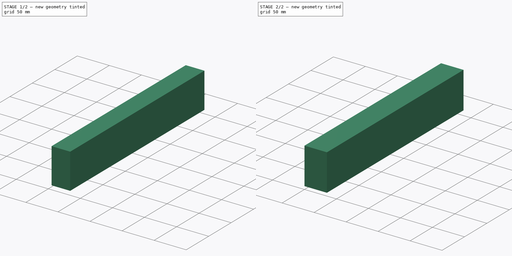
[diagram: build sequence overview — one tinted view per stage of 2, left to right]
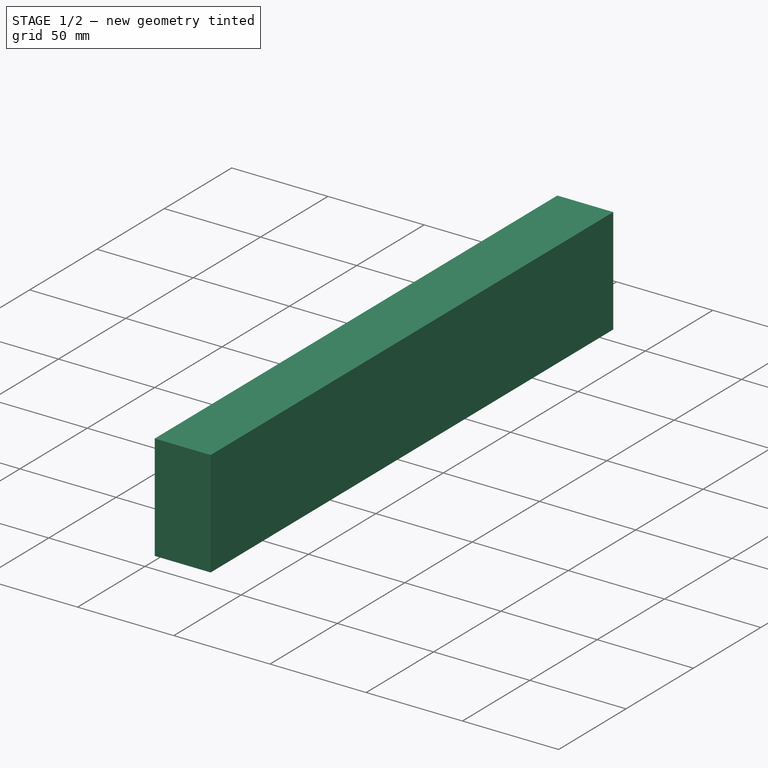
[diagram: stage 1 of 2 — iso view after this stage's code; geometry added in this stage tinted green]
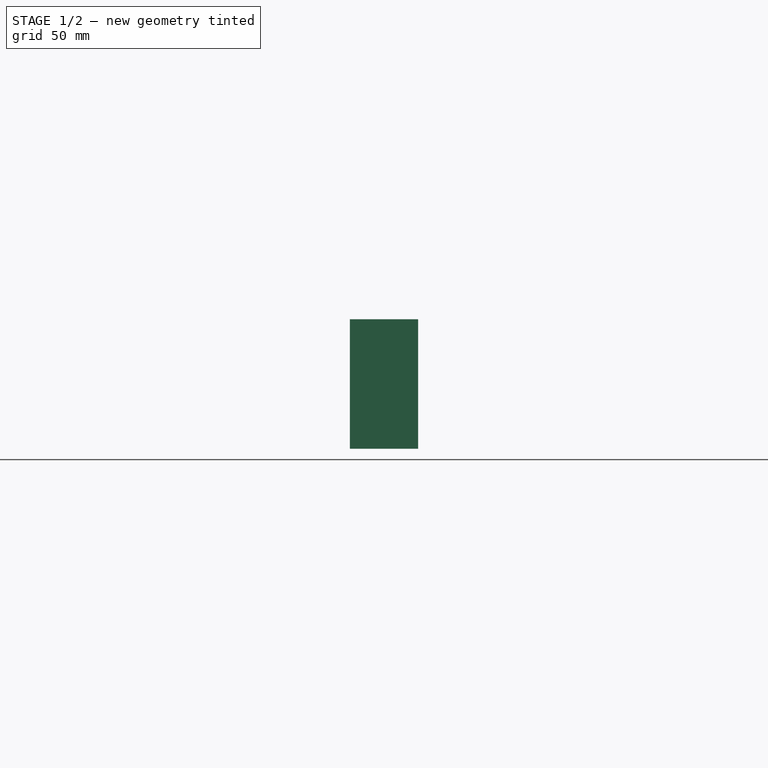
[diagram: stage 1 of 2 — front view after this stage's code; geometry added in this stage tinted green]
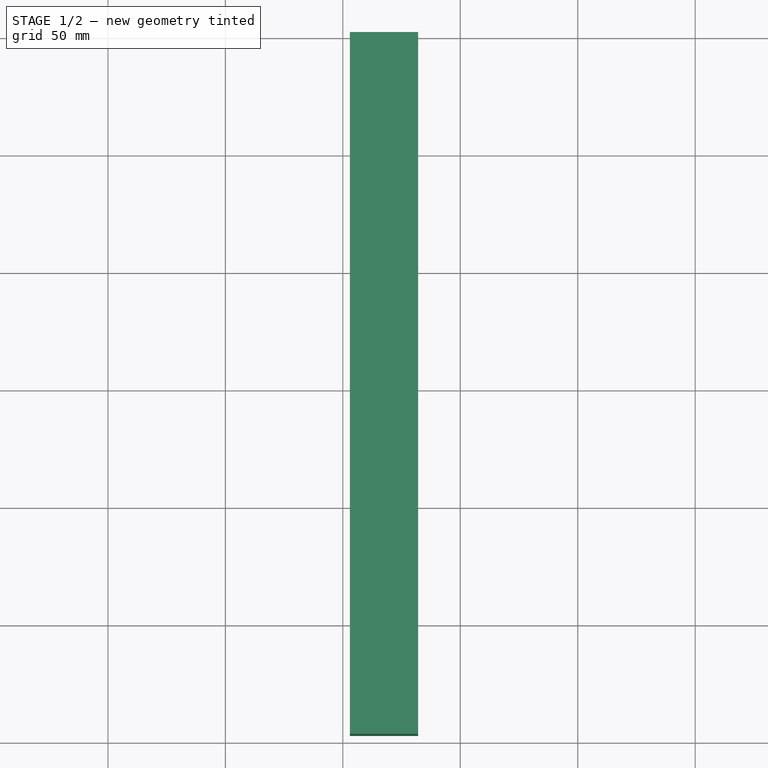
[diagram: stage 1 of 2 — top view after this stage's code; geometry added in this stage tinted green]
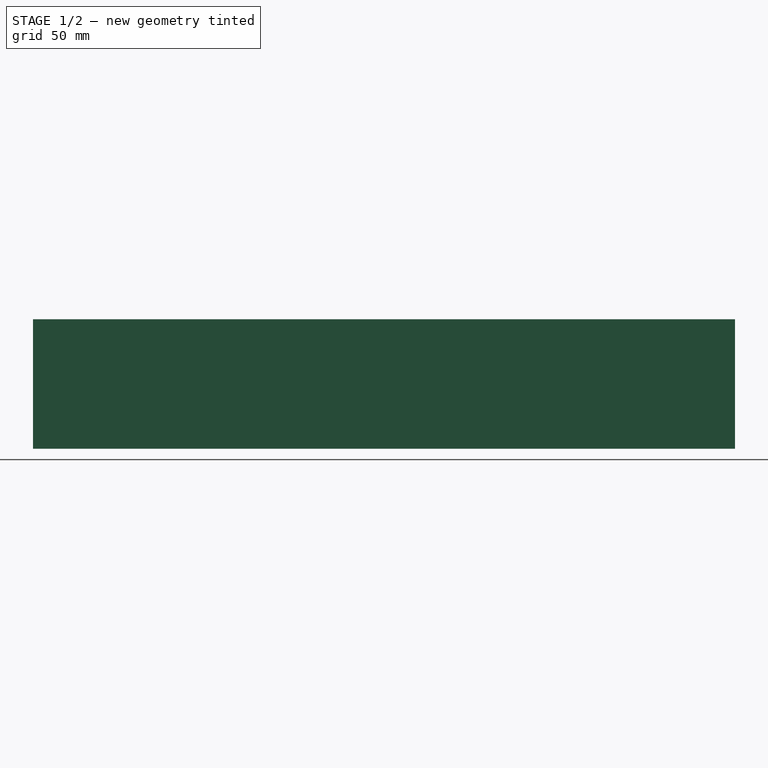
[diagram: stage 1 of 2 — right view after this stage's code; geometry added in this stage tinted green]
FCSTD DOCUMENT  (FreeCAD 0.16RUnknown)
Label: box
License: All rights reserved
LicenseURL: http://en.wikipedia.org/wiki/All_rights_reserved
objects: Part::Box×1, Sketcher::SketchObject×1, Part::Extrusion×1, Part::Cut×1
note: 4 computed .brp shape members not serialized (recipe doc carries the construction recipe); baked Part::Feature solids carry a one-line shape summary decoded from their .brp

FEATURE [Part::Box] Box  label="Cube"
  Height = 57.15
  Length = 35.052
  Width = 304.8
FEATURE [Sketcher::SketchObject] Sketch
  ExternalGeometry = -> [Box]
  Placement = pos=(0,0,0) rot=(1,0,0;3.14159rad)
  Support = -> Box [Face5]
  sketch-geometry (6):
    g0: LineSegment StartX=3 StartY=-3 StartZ=0 EndX=32.052 EndY=-3 EndZ=0
    g1: LineSegment StartX=32.052 StartY=-3 StartZ=0 EndX=32.052 EndY=-301.8 EndZ=0
    g2: LineSegment StartX=32.052 StartY=-301.8 StartZ=0 EndX=3 EndY=-301.8 EndZ=0
    g3: LineSegment StartX=3 StartY=-301.8 StartZ=0 EndX=3 EndY=-3 EndZ=0
    g4: LineSegment [constr] StartX=17.526 StartY=-3 StartZ=0 EndX=17.526 EndY=0 EndZ=0
    g5: LineSegment [constr] StartX=3 StartY=-152.4 StartZ=0 EndX=0 EndY=-152.4 EndZ=0
  constraints (19):
    c: Coincident(g0,g1)
    c: Coincident(g1,g2)
    c: Coincident(g2,g3)
    c: Coincident(g3,g0)
    c: Horizontal(g0)
    c: Horizontal(g2)
    c: Vertical(g1)
    c: Vertical(g3)
    c: PointOnObject(g4,g0)
    c: Vertical(g4)
    c: PointOnObject(g5,g3)
    c: PointOnObject(g5,g-4)
    c: Horizontal(g5)
    c: Symmetric(g-4,g-4,g5)
    c: Symmetric(g-3,g-3,g4)
    c: Equal(g5,g4)
    c: DistanceY(g4,g4) = 3
    c: Symmetric(g0,g0,g4)
    c: Symmetric(g3,g3,g5)
FEATURE [Part::Extrusion] Extrude
  Base = -> Sketch
  Dir = (0,0,55.15)
  Solid = true
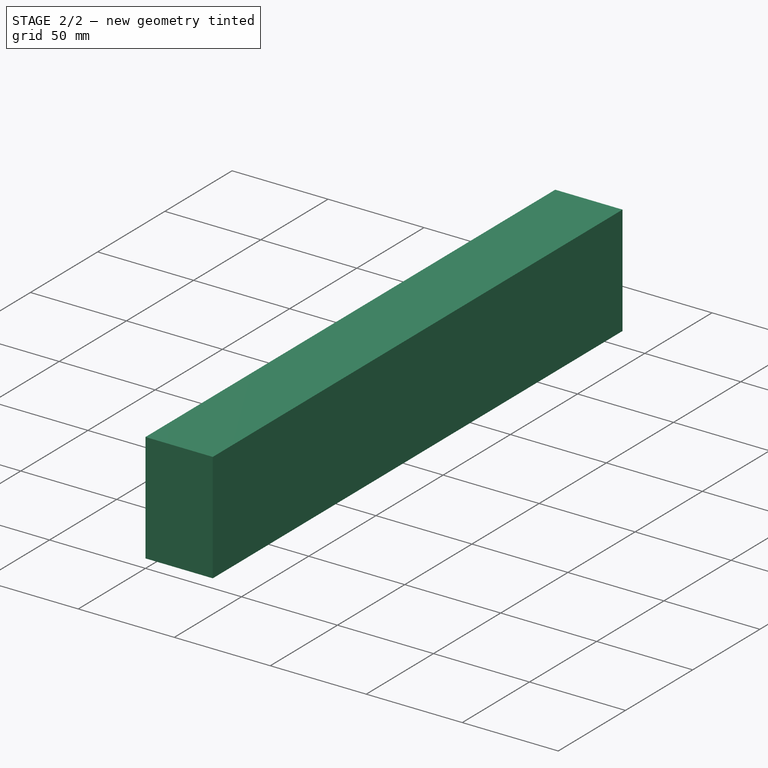
[diagram: stage 2 of 2 — iso view after this stage's code; geometry added in this stage tinted green]
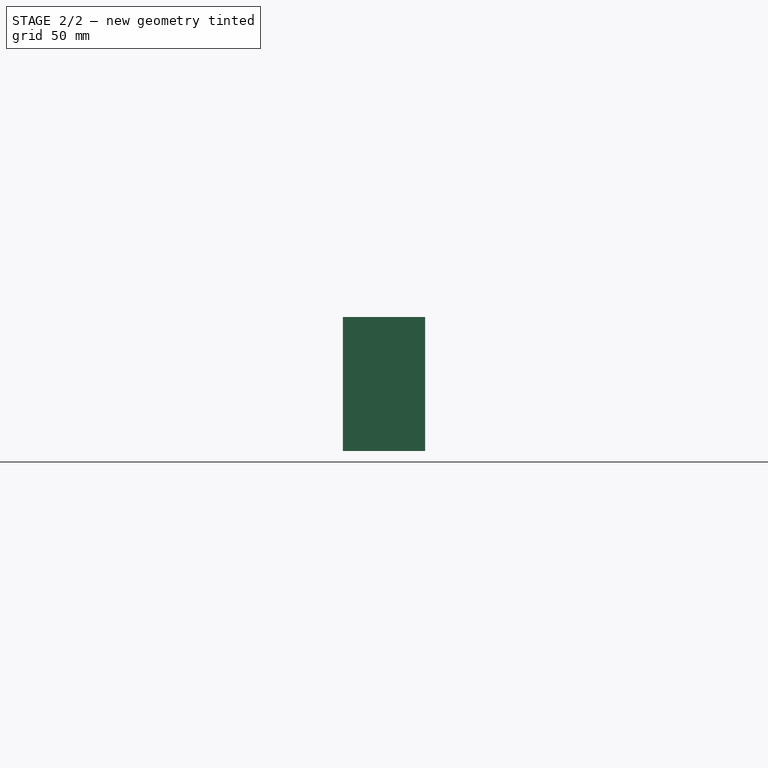
[diagram: stage 2 of 2 — front view after this stage's code; geometry added in this stage tinted green]
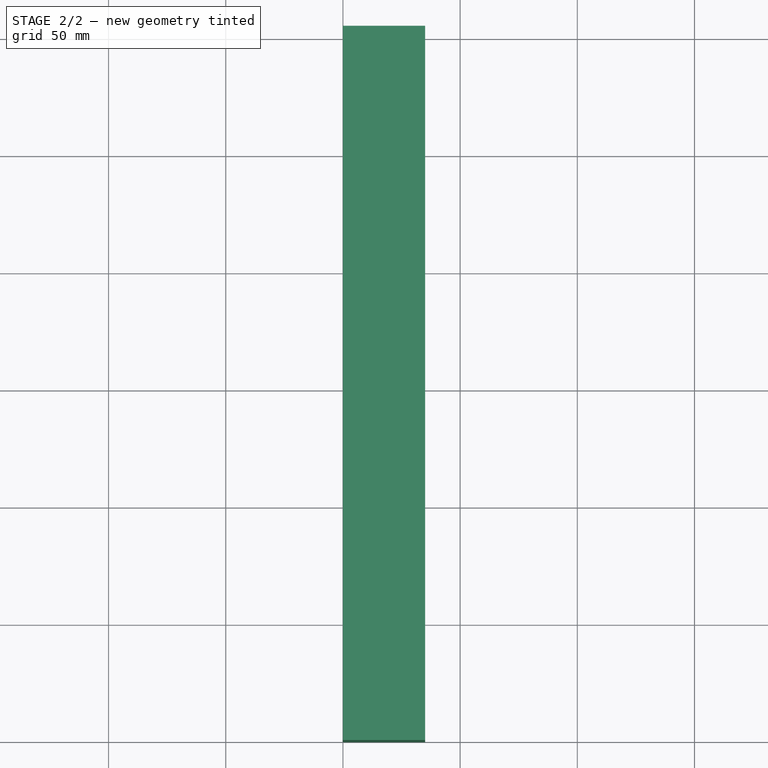
[diagram: stage 2 of 2 — top view after this stage's code; geometry added in this stage tinted green]
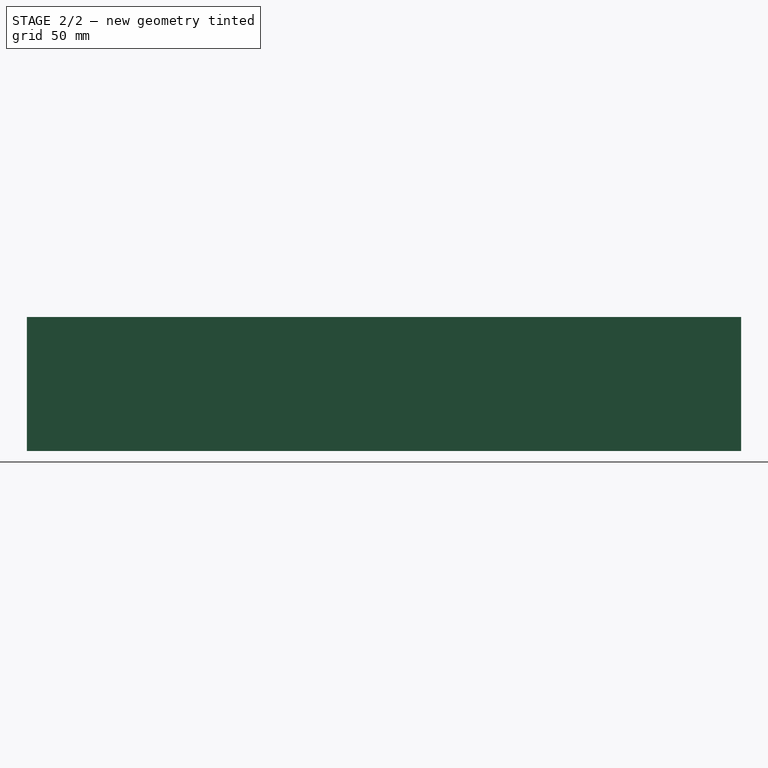
[diagram: stage 2 of 2 — right view after this stage's code; geometry added in this stage tinted green]
FEATURE [Part::Cut] Cut
  Base = -> Box
  Tool = -> Extrude
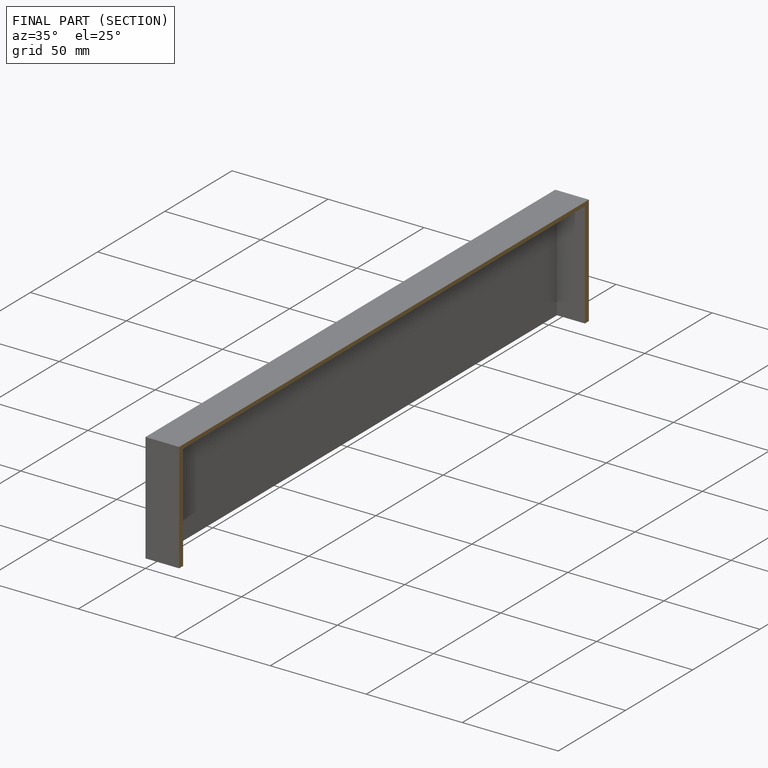
[diagram: finished part — half-section view (interior)]
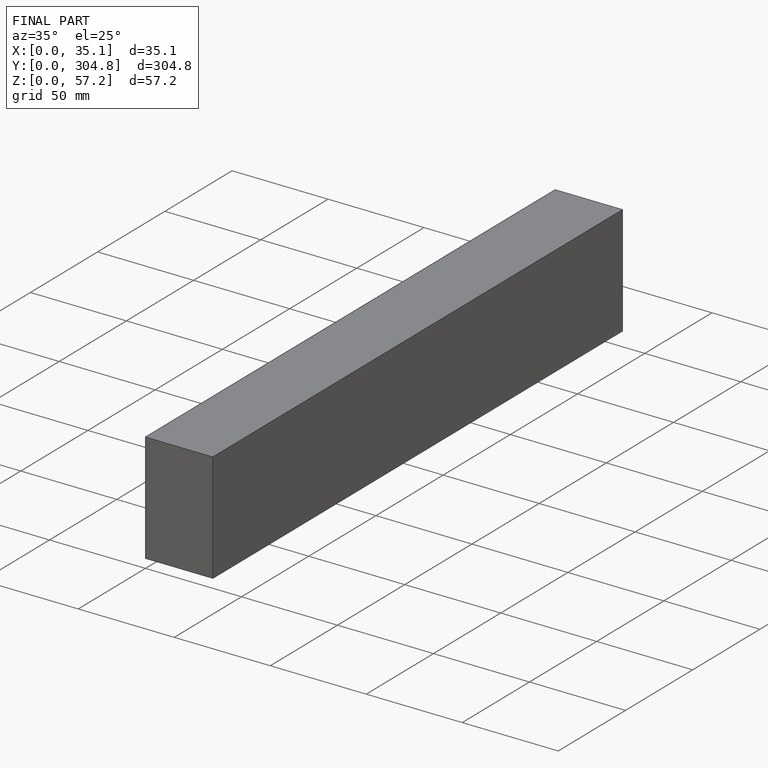
[diagram: finished part — iso view with bounding-box wireframe]
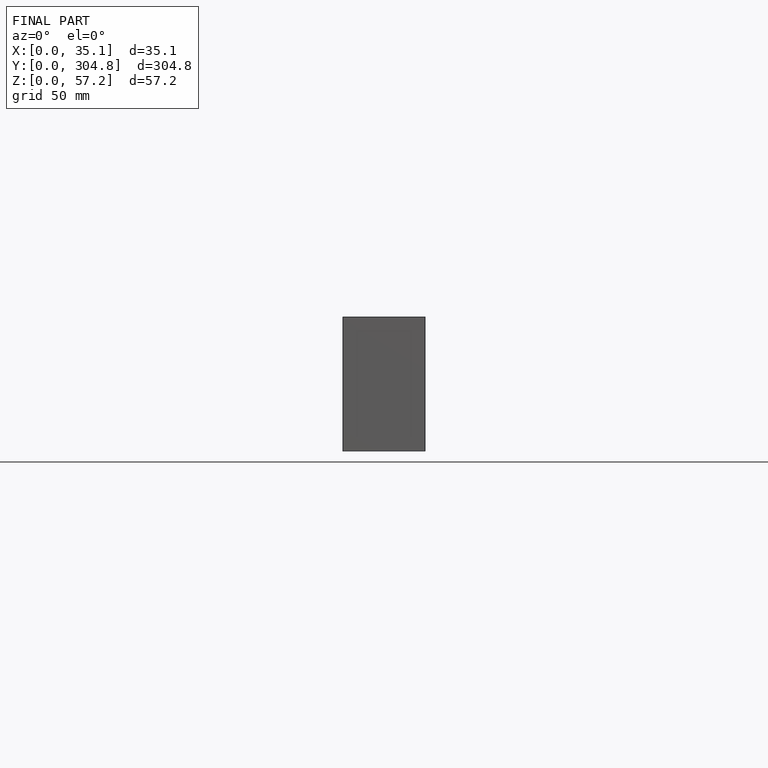
[diagram: finished part — front view with bounding-box wireframe]
